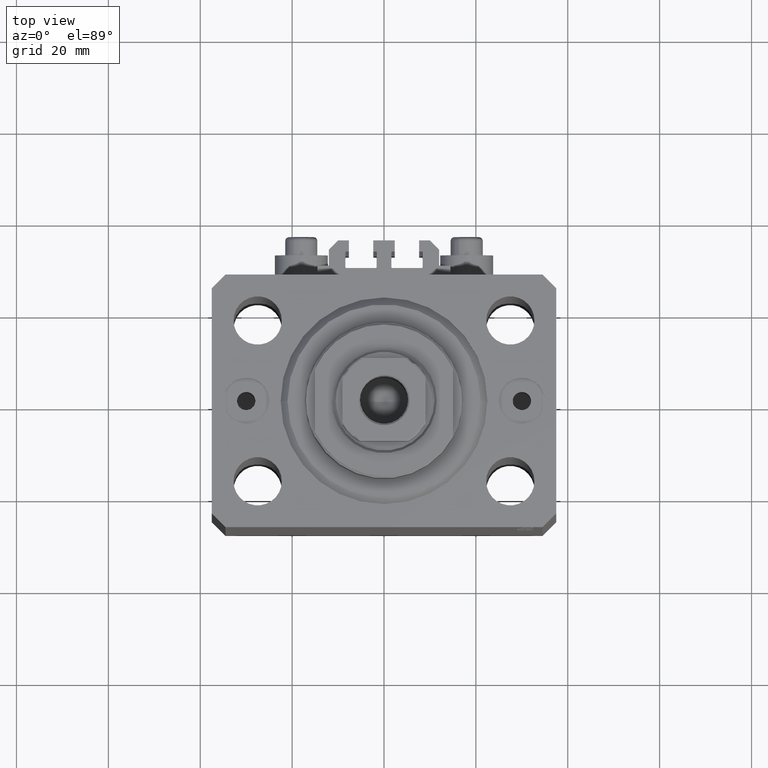
[diagram: clean part render]
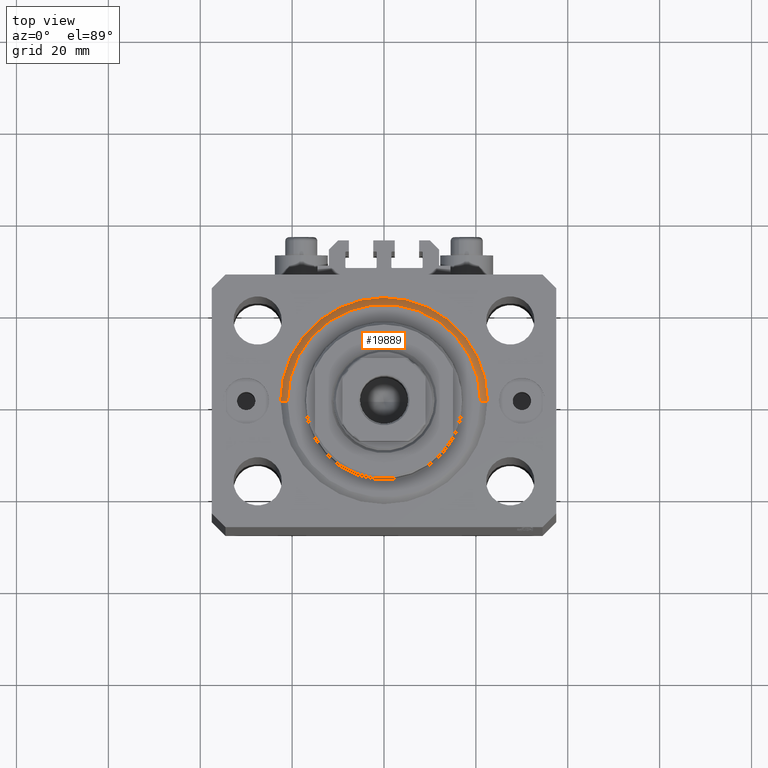
[diagram: same view with one face highlighted and labeled with its STEP entity id]
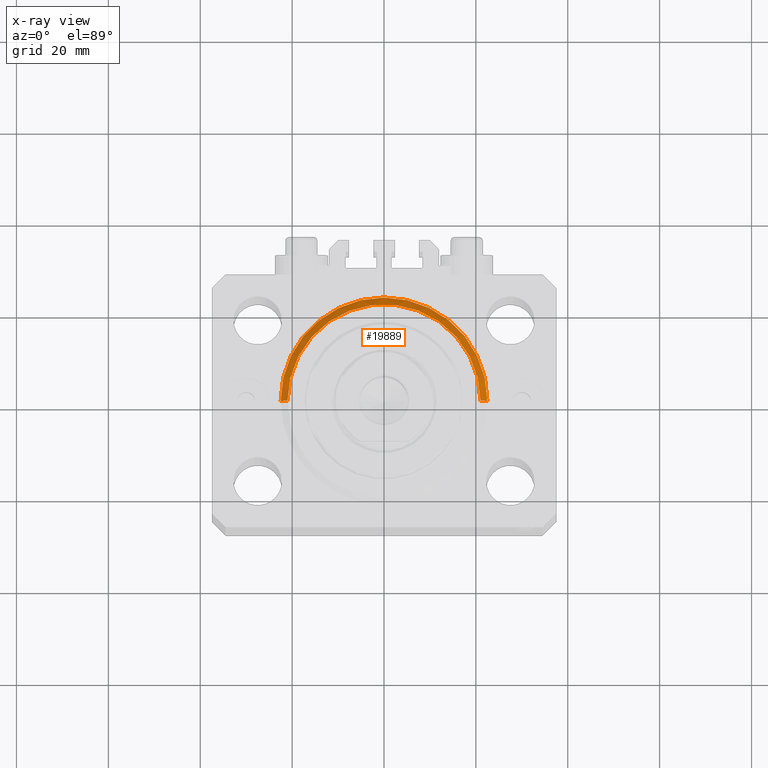
[diagram: x-ray of the same camera — body ghosted, the highlighted face saturated]
A machine part, top view. The second image highlights one B-rep face of the part: STEP entity #19889.
The next image is the same camera in x-ray: the body ghosted, the highlighted face saturated — about 0% of this face is hidden behind the body in this view.
In plain terms, the highlighted conical surface has half-angle 45 deg.
Its self-contained STEP definition (entity closure, byte-faithful):
#4808 = VERTEX_POINT ( 'NONE', #27886 ) ;
#6410 = DIRECTION ( 'NONE',  ( -0.000000000000000000, -0.000000000000000000, -1.000000000000000000 ) ) ;
#7854 = ORIENTED_EDGE ( 'NONE', *, *, #44026, .T. ) ;
#8370 = AXIS2_PLACEMENT_3D ( 'NONE', #9993, #6410, #31486 ) ;
#9993 = CARTESIAN_POINT ( 'NONE',  ( 0.000000000000000000, 0.000000000000000000, 0.000000000000000000 ) ) ;
#10096 = CIRCLE ( 'NONE', #39067, 22.50000000000000355 ) ;
#10290 = ORIENTED_EDGE ( 'NONE', *, *, #27171, .F. ) ;
#11085 = CARTESIAN_POINT ( 'NONE',  ( 0.000000000000000000, 0.000000000000000000, 1.500000000000001332 ) ) ;
#11613 = CARTESIAN_POINT ( 'NONE',  ( 20.99999999999998934, 0.000000000000000000, 0.000000000000000000 ) ) ;
#12305 = EDGE_CURVE ( 'NONE', #37515, #4808, #44127, .T. ) ;
#14166 = DIRECTION ( 'NONE',  ( -0.000000000000000000, -0.000000000000000000, 1.000000000000000000 ) ) ;
#16664 = AXIS2_PLACEMENT_3D ( 'NONE', #43278, #25147, #39720 ) ;
#18585 = VERTEX_POINT ( 'NONE', #25296 ) ;
#19433 = VECTOR ( 'NONE', #32074, 1000.000000000000114 ) ;
#19889 = ADVANCED_FACE ( 'NONE', ( #28734 ), #29653, .T. ) ;
#20296 = VERTEX_POINT ( 'NONE', #29334 ) ;
#22099 = CIRCLE ( 'NONE', #8370, 20.99999999999998934 ) ;
#25147 = DIRECTION ( 'NONE',  ( -0.000000000000000000, -0.000000000000000000, 1.000000000000000000 ) ) ;
#25296 = CARTESIAN_POINT ( 'NONE',  ( -20.99999999999998934, 2.663606788145492628E-15, 0.000000000000000000 ) ) ;
#25998 = ORIENTED_EDGE ( 'NONE', *, *, #37692, .F. ) ;
#27171 = EDGE_CURVE ( 'NONE', #18585, #37515, #22099, .T. ) ;
#27886 = CARTESIAN_POINT ( 'NONE',  ( 22.50000000000000355, 2.755455298081545172E-15, 1.500000000000001332 ) ) ;
#28734 = FACE_OUTER_BOUND ( 'NONE', #36975, .T. ) ;
#29334 = CARTESIAN_POINT ( 'NONE',  ( -22.50000000000000355, 0.000000000000000000, 1.500000000000001332 ) ) ;
#29576 = DIRECTION ( 'NONE',  ( 0.7071067811865500152, 0.000000000000000000, 0.7071067811865451302 ) ) ;
#29653 = CONICAL_SURFACE ( 'NONE', #16664, 22.50000000000000355, 0.7853981633974517207 ) ;
#31486 = DIRECTION ( 'NONE',  ( 1.000000000000000000, 0.000000000000000000, 0.000000000000000000 ) ) ;
#32074 = DIRECTION ( 'NONE',  ( -0.7071067811865500152, 8.659560562354963673E-17, 0.7071067811865451302 ) ) ;
#32312 = CARTESIAN_POINT ( 'NONE',  ( -22.50000000000000355, 2.755455298081545172E-15, 1.500000000000001332 ) ) ;
#36975 = EDGE_LOOP ( 'NONE', ( #10290, #7854, #25998, #40052 ) ) ;
#37515 = VERTEX_POINT ( 'NONE', #11613 ) ;
#37692 = EDGE_CURVE ( 'NONE', #4808, #20296, #10096, .T. ) ;
#39067 = AXIS2_PLACEMENT_3D ( 'NONE', #11085, #14166, #40224 ) ;
#39720 = DIRECTION ( 'NONE',  ( 1.000000000000000000, 0.000000000000000000, 0.000000000000000000 ) ) ;
#40052 = ORIENTED_EDGE ( 'NONE', *, *, #12305, .F. ) ;
#40084 = CARTESIAN_POINT ( 'NONE',  ( 22.50000000000000355, 0.000000000000000000, 1.500000000000001332 ) ) ;
#40224 = DIRECTION ( 'NONE',  ( 1.000000000000000000, 0.000000000000000000, 0.000000000000000000 ) ) ;
#43278 = CARTESIAN_POINT ( 'NONE',  ( 0.000000000000000000, 0.000000000000000000, 1.500000000000001332 ) ) ;
#44026 = EDGE_CURVE ( 'NONE', #18585, #20296, #47119, .T. ) ;
#44127 = LINE ( 'NONE', #40084, #45097 ) ;
#45097 = VECTOR ( 'NONE', #29576, 1000.000000000000114 ) ;
#47119 = LINE ( 'NONE', #32312, #19433 ) ;